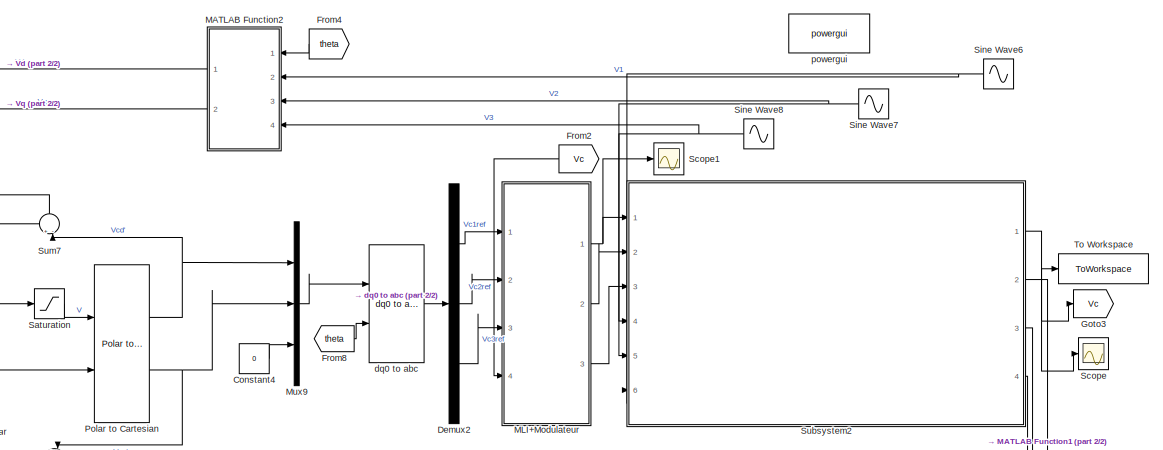
[diagram: root canvas - part 1/2, central region]
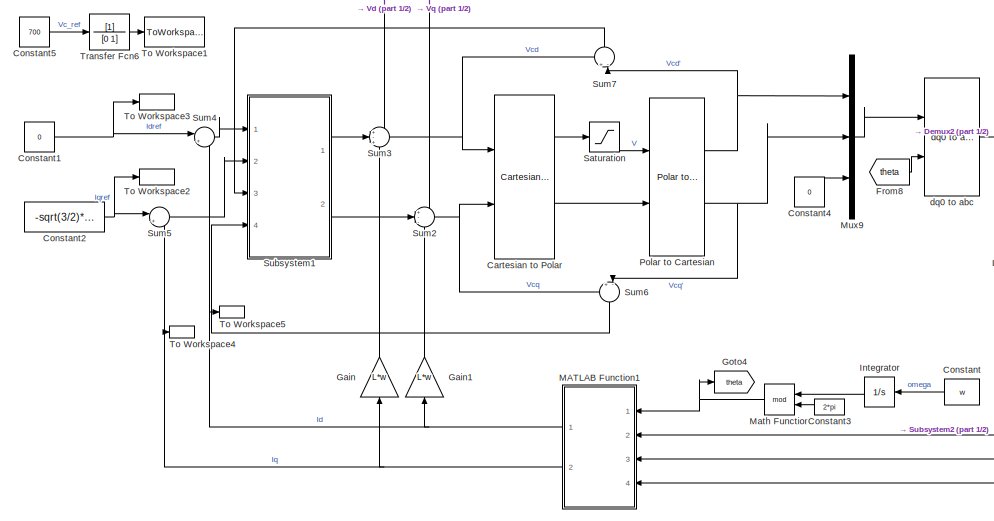
[diagram: root canvas - part 2/2, middle left region]
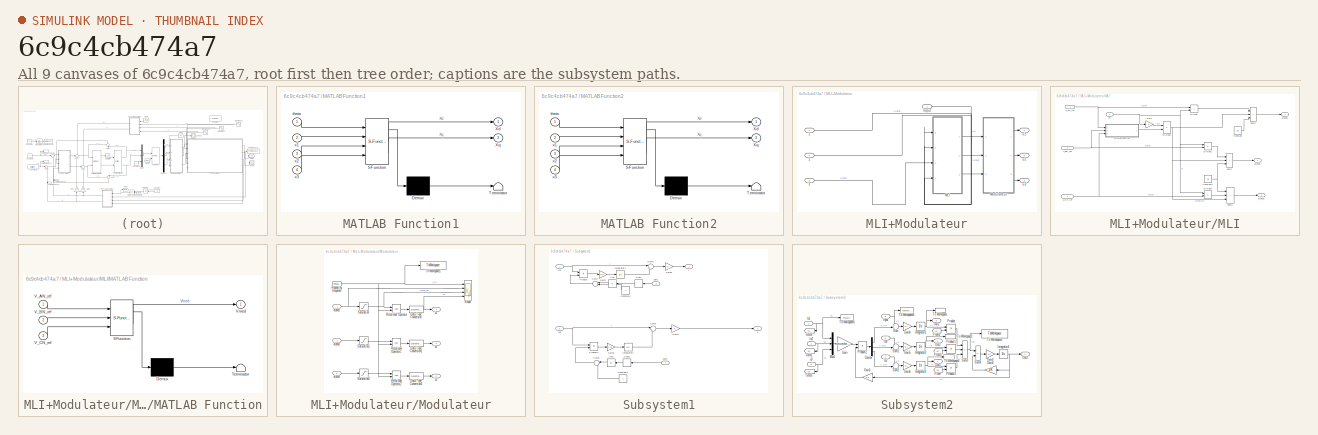
[diagram: thumbnail index - all 9 canvases of the model, root first then tree order]
MODEL slx_6c9c4cb474a7
KIND model
CONFIG AbsTol = auto
CONFIG EnableMultiTasking = off
CONFIG FixedStep = 1e-6
CONFIG MaxStep = auto
CONFIG MinStep = auto
CONFIG RelTol = 1e-3
CONFIG SampleTimeConstraint = Unconstrained
CONFIG Solver = ode8
CONFIG SolverName = ode8
CONFIG StartTime = 0.0
CONFIG StopTime = 0.1
BLOCK [Reference] Cartesian to Polar  REF=simulink_extras/Transformations/Cartesian to
Polar
  Ports = [2, 2]
  SourceBlock = simulink_extras/Transformations/Cartesian to\nPolar
  SourceType = Cart2Polar
BLOCK [Constant] Constant
  Value = w
BLOCK [Constant] Constant1
  Value = 0
BLOCK [Constant] Constant2
  Value = -sqrt(3/2)*Im
BLOCK [Constant] Constant3
  Value = 2*pi
BLOCK [Constant] Constant4
  Value = 0
BLOCK [Constant] Constant5
  Value = 700
BLOCK [Demux] Demux2
  Outputs = 3
  Ports = [1, 3]
BLOCK [From] From2
  GotoTag = Vc
BLOCK [From] From4
  GotoTag = theta
BLOCK [From] From8
  GotoTag = theta
BLOCK [Gain] Gain
  Gain = L*w
BLOCK [Gain] Gain1
  Gain = L*w
BLOCK [Goto] Goto3
  GotoTag = Vc
BLOCK [Goto] Goto4
  GotoTag = theta
BLOCK [Integrator] Integrator
  Ports = [1, 1]
BLOCK [SubSystem] MATLAB Function1
  ErrorFcn = Stateflow.Translate.translate
  PermitHierarchicalResolution = ExplicitOnly
  Ports = [4, 2]
  SFBlockType = MATLAB Function
  TreatAsAtomicUnit = on
BLOCK [Demux] MATLAB Function1/ Demux 
  Outputs = 1
  Ports = [1, 1]
BLOCK [S-Function] MATLAB Function1/ SFunction 
  EnableBusSupport = on
  FunctionName = sf_sfun
  PortCounts = [4 3]
  Ports = [4, 3]
  SFcnIsStateOwnerBlock = off
  SFunctionDeploymentMode = off
  Tag = Stateflow S-Function Redresseur_MLI_3Ph_dq_model 2
BLOCK [Terminator] MATLAB Function1/ Terminator 
BLOCK [Outport] MATLAB Function1/Xd
BLOCK [Outport] MATLAB Function1/Xq
  Port = 2
BLOCK [Inport] MATLAB Function1/theta
BLOCK [Inport] MATLAB Function1/x1
  Port = 2
BLOCK [Inport] MATLAB Function1/x2
  Port = 3
BLOCK [Inport] MATLAB Function1/x3
  Port = 4
BLOCK [SubSystem] MATLAB Function2
  ErrorFcn = Stateflow.Translate.translate
  PermitHierarchicalResolution = ExplicitOnly
  Ports = [4, 2]
  SFBlockType = MATLAB Function
  TreatAsAtomicUnit = on
BLOCK [Demux] MATLAB Function2/ Demux 
  Outputs = 1
  Ports = [1, 1]
BLOCK [S-Function] MATLAB Function2/ SFunction 
  EnableBusSupport = on
  FunctionName = sf_sfun
  PortCounts = [4 3]
  Ports = [4, 3]
  SFcnIsStateOwnerBlock = off
  SFunctionDeploymentMode = off
  Tag = Stateflow S-Function Redresseur_MLI_3Ph_dq_model 6
BLOCK [Terminator] MATLAB Function2/ Terminator 
BLOCK [Outport] MATLAB Function2/Xd
BLOCK [Outport] MATLAB Function2/Xq
  Port = 2
BLOCK [Inport] MATLAB Function2/theta
BLOCK [Inport] MATLAB Function2/x1
  Port = 2
BLOCK [Inport] MATLAB Function2/x2
  Port = 3
BLOCK [Inport] MATLAB Function2/x3
  Port = 4
BLOCK [SubSystem] MLI+Modulateur
  Ports = [4, 3]
BLOCK [Inport] MLI+Modulateur/1
  IconDisplay = Signal name
BLOCK [Inport] MLI+Modulateur/2
  IconDisplay = Signal name
  Port = 2
BLOCK [Inport] MLI+Modulateur/3
  IconDisplay = Signal name
  Port = 3
BLOCK [Inport] MLI+Modulateur/Input
  IconDisplay = Signal name
  Port = 4
BLOCK [SubSystem] MLI+Modulateur/MLI
  Ports = [4, 3]
BLOCK [Constant] MLI+Modulateur/MLI/Constant
  Value = 1/2
BLOCK [Constant] MLI+Modulateur/MLI/Constant1
  Value = 1/2
BLOCK [Product] MLI+Modulateur/MLI/Divide
  Inputs = */
  Ports = [2, 1]
BLOCK [Product] MLI+Modulateur/MLI/Divide1
  Inputs = /*
  Ports = [2, 1]
BLOCK [Product] MLI+Modulateur/MLI/Divide2
  Inputs = /*
  Ports = [2, 1]
BLOCK [Product] MLI+Modulateur/MLI/Divide3
  Inputs = /*
  Ports = [2, 1]
BLOCK [Gain] MLI+Modulateur/MLI/Gain
  Gain = 2
BLOCK [SubSystem] MLI+Modulateur/MLI/MATLAB Function
  ErrorFcn = Stateflow.Translate.translate
  PermitHierarchicalResolution = ExplicitOnly
  Ports = [3, 1]
  SFBlockType = MATLAB Function
  TreatAsAtomicUnit = on
BLOCK [Demux] MLI+Modulateur/MLI/MATLAB Function/ Demux 
  Outputs = 1
  Ports = [1, 1]
BLOCK [S-Function] MLI+Modulateur/MLI/MATLAB Function/ SFunction 
  EnableBusSupport = on
  FunctionName = sf_sfun
  PortCounts = [3 2]
  Ports = [3, 2]
  SFcnIsStateOwnerBlock = off
  SFunctionDeploymentMode = off
  Tag = Stateflow S-Function Redresseur_MLI_3Ph_dq_model 5
BLOCK [Terminator] MLI+Modulateur/MLI/MATLAB Function/ Terminator 
BLOCK [Inport] MLI+Modulateur/MLI/MATLAB Function/V_AN_ref
BLOCK [Inport] MLI+Modulateur/MLI/MATLAB Function/V_BN_ref
  Port = 2
BLOCK [Inport] MLI+Modulateur/MLI/MATLAB Function/V_CN_ref
  Port = 3
BLOCK [Outport] MLI+Modulateur/MLI/MATLAB Function/Vmed
BLOCK [Sum] MLI+Modulateur/MLI/Sum1
  IconShape = rectangular
  Inputs = +++
  Ports = [3, 1]
BLOCK [Sum] MLI+Modulateur/MLI/Sum2
  IconShape = rectangular
  Inputs = +++
  Ports = [3, 1]
BLOCK [Sum] MLI+Modulateur/MLI/Sum3
  IconShape = rectangular
  Inputs = +++
  Ports = [3, 1]
BLOCK [Inport] MLI+Modulateur/MLI/V_AN_ref
  IconDisplay = Signal name
BLOCK [Inport] MLI+Modulateur/MLI/V_BN_ref
  IconDisplay = Signal name
  Port = 2
BLOCK [Inport] MLI+Modulateur/MLI/V_CN_ref
  IconDisplay = Signal name
  Port = 3
BLOCK [Inport] MLI+Modulateur/MLI/Vc
  Port = 4
BLOCK [Outport] MLI+Modulateur/MLI/alpha1
BLOCK [Outport] MLI+Modulateur/MLI/alpha2
  Port = 2
BLOCK [Outport] MLI+Modulateur/MLI/alpha3
  Port = 3
BLOCK [SubSystem] MLI+Modulateur/Modulateur
  Ports = [3, 3]
BLOCK [DataTypeConversion] MLI+Modulateur/Modulateur/Data Type Conversion
  RndMeth = Floor
  SaturateOnIntegerOverflow = off
BLOCK [DataTypeConversion] MLI+Modulateur/Modulateur/Data Type Conversion1
  RndMeth = Floor
  SaturateOnIntegerOverflow = off
BLOCK [DataTypeConversion] MLI+Modulateur/Modulateur/Data Type Conversion2
  RndMeth = Floor
  SaturateOnIntegerOverflow = off
BLOCK [RelationalOperator] MLI+Modulateur/Modulateur/Relational Operator
  InputSameDT = off
  OutDataTypeStr = boolean
  Ports = [2, 1]
  RndMeth = Simplest
BLOCK [RelationalOperator] MLI+Modulateur/Modulateur/Relational Operator1
  InputSameDT = off
  OutDataTypeStr = boolean
  Ports = [2, 1]
  RndMeth = Simplest
BLOCK [RelationalOperator] MLI+Modulateur/Modulateur/Relational Operator2
  InputSameDT = off
  OutDataTypeStr = boolean
  Ports = [2, 1]
  RndMeth = Simplest
BLOCK [Reference] MLI+Modulateur/Modulateur/Repeating Sequence  REF=simulink/Sources/Repeating
Sequence
  Ports = [0, 1]
  SourceBlock = simulink/Sources/Repeating\nSequence
  SourceType = Repeating table
BLOCK [Saturate] MLI+Modulateur/Modulateur/Saturation
  LowerLimit = 0
  UpperLimit = 1
BLOCK [Saturate] MLI+Modulateur/Modulateur/Saturation1
  LowerLimit = 0
  UpperLimit = 1
BLOCK [Saturate] MLI+Modulateur/Modulateur/Saturation2
  LowerLimit = 0
  UpperLimit = 1
BLOCK [Scope] MLI+Modulateur/Modulateur/Scope
  Floating = off
  NumInputPorts = 4
  Ports = [4]
  ScopeSpecificationString = Simulink.scopes.TimeScopeBlockCfg('CurrentConfiguration', extmgr.ConfigurationSet(extmgr.Configuration('Core','General UI',true),extmgr.Configuration('Core','Source UI',true),extmgr.Configuration('Sources','WiredSimulink',true,'DataLoggingVariableName','ScopeData2'),extmgr.Configuration('Visuals','Time Domain',true,'SerializedDisplays',{struct('MinYLimReal','-0.07963','MaxYLimReal','1.04155','YLab...<+1554ch>
BLOCK [ToWorkspace] MLI+Modulateur/Modulateur/To Workspace1
  FixptAsFi = on
  MaxDataPoints = inf
  Ports = [1]
  SampleTime = -1
  SaveFormat = Timeseries
  VariableName = Vtri
BLOCK [Inport] MLI+Modulateur/Modulateur/alpha1
BLOCK [Inport] MLI+Modulateur/Modulateur/alpha2
  Port = 2
BLOCK [Inport] MLI+Modulateur/Modulateur/alpha3
  Port = 3
BLOCK [Outport] MLI+Modulateur/Modulateur/u1
BLOCK [Outport] MLI+Modulateur/Modulateur/u2
  Port = 2
BLOCK [Outport] MLI+Modulateur/Modulateur/u3
  Port = 3
BLOCK [Outport] MLI+Modulateur/u1
BLOCK [Outport] MLI+Modulateur/u2
  Port = 2
BLOCK [Outport] MLI+Modulateur/u3
  Port = 3
BLOCK [Math] Math Function
  Operator = mod
  Ports = [2, 1]
BLOCK [Mux] Mux9
  DisplayOption = bar
  Inputs = 3
  Ports = [3, 1]
BLOCK [Reference] Polar to Cartesian  REF=simulink_extras/Transformations/Polar to
Cartesian
  Ports = [2, 2]
  SourceBlock = simulink_extras/Transformations/Polar to\nCartesian
  SourceType = Polar2Cart
BLOCK [Saturate] Saturation
  LowerLimit = 0
  UpperLimit = 381
BLOCK [Scope] Scope
  Floating = off
  NumInputPorts = 1
  Ports = [1]
  ScopeSpecificationString = Simulink.scopes.TimeScopeBlockCfg('CurrentConfiguration', extmgr.ConfigurationSet(extmgr.Configuration('Core','General UI',true),extmgr.Configuration('Core','Source UI',true),extmgr.Configuration('Sources','WiredSimulink',true,'DataLoggingVariableName','ScopeData1'),extmgr.Configuration('Visuals','Time Domain',true,'SerializedDisplays',{struct('MinYLimReal','474.62231','MaxYLimReal','809.09298','Y...<+1458ch>
BLOCK [Scope] Scope1
  Floating = off
  NumInputPorts = 1
  Ports = [1]
  ScopeSpecificationString = Simulink.scopes.TimeScopeBlockCfg('CurrentConfiguration', extmgr.ConfigurationSet(extmgr.Configuration('Core','General UI',true),extmgr.Configuration('Core','Source UI',true),extmgr.Configuration('Sources','WiredSimulink',true,'DataLoggingVariableName','u1_0','DataLogging',true,'DataLoggingDecimation','1'),extmgr.Configuration('Visuals','Time Domain',true,'SerializedDisplays',{struct('MinYLimReal'...<+1502ch>
BLOCK [Sin] Sine Wave6
  Amplitude = V*sqrt(2)
  Frequency = 2*50*pi
  Ports = [0, 1]
  SampleTime = 0
BLOCK [Sin] Sine Wave7
  Amplitude = V*sqrt(2)
  Frequency = 2*50*pi
  Phase = -2*pi/3
  Ports = [0, 1]
  SampleTime = 0
BLOCK [Sin] Sine Wave8
  Amplitude = V*sqrt(2)
  Frequency = 2*50*pi
  Phase = -4*pi/3
  Ports = [0, 1]
  SampleTime = 0
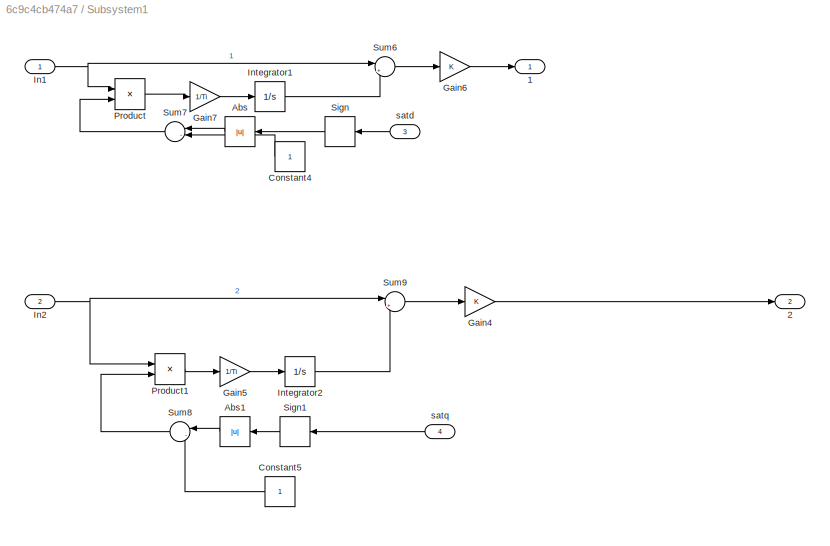
BLOCK [SubSystem] Subsystem1
  Ports = [4, 2]
BLOCK [Outport] Subsystem1/1
BLOCK [Outport] Subsystem1/2
  Port = 2
BLOCK [Abs] Subsystem1/Abs
  SaturateOnIntegerOverflow = off
BLOCK [Abs] Subsystem1/Abs1
  SaturateOnIntegerOverflow = off
BLOCK [Constant] Subsystem1/Constant4
BLOCK [Constant] Subsystem1/Constant5
BLOCK [Gain] Subsystem1/Gain4
  Gain = K
BLOCK [Gain] Subsystem1/Gain5
  Gain = 1/Ti
BLOCK [Gain] Subsystem1/Gain6
  Gain = K
BLOCK [Gain] Subsystem1/Gain7
  Gain = 1/Ti
BLOCK [Inport] Subsystem1/In1
  IconDisplay = Signal name
BLOCK [Inport] Subsystem1/In2
  IconDisplay = Signal name
  Port = 2
BLOCK [Integrator] Subsystem1/Integrator1
  InitialCondition = 1
  Ports = [1, 1]
BLOCK [Integrator] Subsystem1/Integrator2
  InitialCondition = 1
  Ports = [1, 1]
BLOCK [Product] Subsystem1/Product
  Ports = [2, 1]
BLOCK [Product] Subsystem1/Product1
  Ports = [2, 1]
BLOCK [Signum] Subsystem1/Sign
BLOCK [Signum] Subsystem1/Sign1
BLOCK [Sum] Subsystem1/Sum6
  Inputs = |++
  Ports = [2, 1]
BLOCK [Sum] Subsystem1/Sum7
  Inputs = |-+
  Ports = [2, 1]
BLOCK [Sum] Subsystem1/Sum8
  Inputs = |-+
  Ports = [2, 1]
BLOCK [Sum] Subsystem1/Sum9
  Inputs = |++
  Ports = [2, 1]
BLOCK [Inport] Subsystem1/satd
  Port = 3
BLOCK [Inport] Subsystem1/satq
  Port = 4
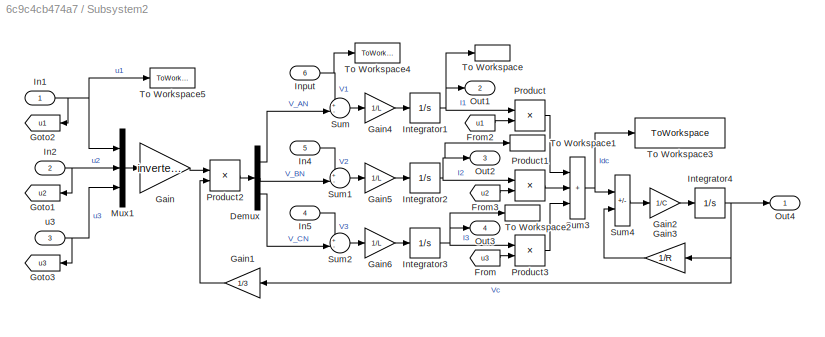
BLOCK [SubSystem] Subsystem2
  Ports = [6, 4]
BLOCK [Demux] Subsystem2/Demux
  Outputs = 3
  Ports = [1, 3]
BLOCK [From] Subsystem2/From
  GotoTag = u3
BLOCK [From] Subsystem2/From2
  GotoTag = u1
BLOCK [From] Subsystem2/From3
  GotoTag = u2
BLOCK [Gain] Subsystem2/Gain
  Gain = inverter_matrix
  Multiplication = Matrix(K*u)
BLOCK [Gain] Subsystem2/Gain1
  Gain = 1/3
BLOCK [Gain] Subsystem2/Gain2
  Gain = 1/C
BLOCK [Gain] Subsystem2/Gain3
  Gain = 1/R
BLOCK [Gain] Subsystem2/Gain4
  Gain = 1/L
BLOCK [Gain] Subsystem2/Gain5
  Gain = 1/L
BLOCK [Gain] Subsystem2/Gain6
  Gain = 1/L
BLOCK [Goto] Subsystem2/Goto1
  GotoTag = u2
BLOCK [Goto] Subsystem2/Goto2
  GotoTag = u1
BLOCK [Goto] Subsystem2/Goto3
  GotoTag = u3
BLOCK [Inport] Subsystem2/In1
  IconDisplay = Signal name
BLOCK [Inport] Subsystem2/In2
  IconDisplay = Signal name
  Port = 2
BLOCK [Inport] Subsystem2/In4
  IconDisplay = Signal name
  Port = 5
BLOCK [Inport] Subsystem2/In5
  IconDisplay = Signal name
  Port = 4
BLOCK [Inport] Subsystem2/Input
  IconDisplay = Signal name
  Port = 6
BLOCK [Integrator] Subsystem2/Integrator1
  Ports = [1, 1]
BLOCK [Integrator] Subsystem2/Integrator2
  Ports = [1, 1]
BLOCK [Integrator] Subsystem2/Integrator3
  Ports = [1, 1]
BLOCK [Integrator] Subsystem2/Integrator4
  InitialCondition = V*sqrt(2)*sqrt(3)
  Ports = [1, 1]
BLOCK [Mux] Subsystem2/Mux1
  DisplayOption = bar
  Inputs = 3
  Ports = [3, 1]
BLOCK [Outport] Subsystem2/Out1
  IconDisplay = Signal name
  Port = 2
BLOCK [Outport] Subsystem2/Out2
  IconDisplay = Signal name
  Port = 3
BLOCK [Outport] Subsystem2/Out3
  IconDisplay = Signal name
  Port = 4
BLOCK [Outport] Subsystem2/Out4
  IconDisplay = Signal name
BLOCK [Product] Subsystem2/Product
  Ports = [2, 1]
BLOCK [Product] Subsystem2/Product1
  Ports = [2, 1]
BLOCK [Product] Subsystem2/Product2
  Ports = [2, 1]
BLOCK [Product] Subsystem2/Product3
  Ports = [2, 1]
BLOCK [Sum] Subsystem2/Sum
  Inputs = +-|
  Ports = [2, 1]
BLOCK [Sum] Subsystem2/Sum1
  Inputs = +-|
  Ports = [2, 1]
BLOCK [Sum] Subsystem2/Sum2
  Inputs = +-|
  Ports = [2, 1]
BLOCK [Sum] Subsystem2/Sum3
  IconShape = rectangular
  Inputs = +++
  Ports = [3, 1]
BLOCK [Sum] Subsystem2/Sum4
  IconShape = rectangular
  Inputs = +-
  Ports = [2, 1]
BLOCK [ToWorkspace] Subsystem2/To Workspace
  FixptAsFi = on
  MaxDataPoints = inf
  Ports = [1]
  SampleTime = -1
  SaveFormat = Timeseries
  VariableName = I1
BLOCK [ToWorkspace] Subsystem2/To Workspace1
  FixptAsFi = on
  MaxDataPoints = inf
  Ports = [1]
  SampleTime = -1
  SaveFormat = Timeseries
  VariableName = I2
BLOCK [ToWorkspace] Subsystem2/To Workspace2
  FixptAsFi = on
  MaxDataPoints = inf
  Ports = [1]
  SampleTime = -1
  SaveFormat = Timeseries
  VariableName = I3
BLOCK [ToWorkspace] Subsystem2/To Workspace3
  FixptAsFi = on
  MaxDataPoints = inf
  Ports = [1]
  SampleTime = -1
  SaveFormat = Timeseries
  VariableName = Idc
BLOCK [ToWorkspace] Subsystem2/To Workspace4
  FixptAsFi = on
  MaxDataPoints = inf
  Ports = [1]
  SampleTime = -1
  SaveFormat = Timeseries
  VariableName = V1
BLOCK [ToWorkspace] Subsystem2/To Workspace5
  FixptAsFi = on
  MaxDataPoints = inf
  Ports = [1]
  SampleTime = -1
  SaveFormat = Timeseries
  VariableName = u1
BLOCK [Inport] Subsystem2/u3
  IconDisplay = Signal name
  Port = 3
BLOCK [Sum] Sum2
  Inputs = +--
  Ports = [3, 1]
BLOCK [Sum] Sum3
  Inputs = +-+
  Ports = [3, 1]
BLOCK [Sum] Sum4
  Inputs = |+-
  Ports = [2, 1]
BLOCK [Sum] Sum5
  Inputs = |+-
  Ports = [2, 1]
BLOCK [Sum] Sum6
  Inputs = +-
  Ports = [2, 1]
BLOCK [Sum] Sum7
  Inputs = +-
  Ports = [2, 1]
BLOCK [ToWorkspace] To Workspace
  FixptAsFi = on
  MaxDataPoints = inf
  Ports = [1]
  SampleTime = -1
  SaveFormat = Timeseries
  VariableName = Vc
BLOCK [ToWorkspace] To Workspace1
  FixptAsFi = on
  MaxDataPoints = inf
  Ports = [1]
  SampleTime = -1
  SaveFormat = Timeseries
  VariableName = Vc_ref
BLOCK [ToWorkspace] To Workspace2
  FixptAsFi = on
  MaxDataPoints = inf
  Ports = [1]
  SampleTime = -1
  SaveFormat = Timeseries
  VariableName = Iqref
BLOCK [ToWorkspace] To Workspace3
  FixptAsFi = on
  MaxDataPoints = inf
  Ports = [1]
  SampleTime = -1
  SaveFormat = Timeseries
  VariableName = Idref
BLOCK [ToWorkspace] To Workspace4
  FixptAsFi = on
  MaxDataPoints = inf
  Ports = [1]
  SampleTime = -1
  SaveFormat = Timeseries
  VariableName = Iq
BLOCK [ToWorkspace] To Workspace5
  FixptAsFi = on
  MaxDataPoints = inf
  Ports = [1]
  SampleTime = -1
  SaveFormat = Timeseries
  VariableName = Id
BLOCK [TransferFcn] Transfer Fcn6
  Denominator = [0 1]
BLOCK [Reference] dq0 to abc  REF=powerlib_meascontrol/Transformations/dq0 to abc
  Ports = [2, 1]
  SourceBlock = powerlib_meascontrol/Transformations/dq0 to abc
  SourceType = dq0 to abc Transformation
BLOCK [Reference] powergui  REF=powerlib/powergui
  Ports = []
  Priority = 1
  SourceBlock = powerlib/powergui
  SourceType = PSB option menu block
LINE Cartesian to Polar:1 -> Saturation:1
LINE Cartesian to Polar:2 -> Polar to Cartesian:2
NET Constant1:1 -> Sum4:1, To Workspace3:1
NET Constant2:1 -> Sum5:1, To Workspace2:1
LINE Constant3:1 -> Math Function:2
LINE Constant4:1 -> Mux9:3
LINE Constant5:1 -> Transfer Fcn6:1
LINE Constant:1 -> Integrator:1
LINE Demux2:1 -> MLI+Modulateur:1
LINE Demux2:2 -> MLI+Modulateur:2
LINE Demux2:3 -> MLI+Modulateur:3
LINE From2:1 -> MLI+Modulateur:4
LINE From4:1 -> MATLAB Function2:1
LINE From8:1 -> dq0 to abc:2
LINE Gain1:1 -> Sum2:3
LINE Gain:1 -> Sum3:3
LINE Integrator:1 -> Math Function:1
NET MATLAB Function1:1 -> Gain1:1, Sum4:2, To Workspace5:1
NET MATLAB Function1:2 -> Gain:1, Sum5:2, To Workspace4:1
LINE MATLAB Function2:1 -> Sum3:1
LINE MATLAB Function2:2 -> Sum2:1
LINE MLI+Modulateur/1:1 -> MLI+Modulateur/MLI:1
LINE MLI+Modulateur/2:1 -> MLI+Modulateur/MLI:2
LINE MLI+Modulateur/3:1 -> MLI+Modulateur/MLI:3
LINE MLI+Modulateur/Input:1 -> MLI+Modulateur/MLI:4
NET MLI+Modulateur/MLI/Constant1:1 -> MLI+Modulateur/MLI/Sum1:3, MLI+Modulateur/MLI/Sum2:1
LINE MLI+Modulateur/MLI/Constant:1 -> MLI+Modulateur/MLI/Sum3:3
LINE MLI+Modulateur/MLI/Divide1:1 -> MLI+Modulateur/MLI/Sum1:1
LINE MLI+Modulateur/MLI/Divide2:1 -> MLI+Modulateur/MLI/Sum2:2
NET MLI+Modulateur/MLI/Divide3:1 -> MLI+Modulateur/MLI/Sum1:2, MLI+Modulateur/MLI/Sum2:3, MLI+Modulateur/MLI/Sum3:2
LINE MLI+Modulateur/MLI/Divide:1 -> MLI+Modulateur/MLI/Sum3:1
LINE MLI+Modulateur/MLI/Gain:1 -> MLI+Modulateur/MLI/Divide3:1
LINE MLI+Modulateur/MLI/MATLAB Function:1 -> MLI+Modulateur/MLI/Divide3:2
LINE MLI+Modulateur/MLI/Sum1:1 -> MLI+Modulateur/MLI/alpha2:1
LINE MLI+Modulateur/MLI/Sum2:1 -> MLI+Modulateur/MLI/alpha3:1
LINE MLI+Modulateur/MLI/Sum3:1 -> MLI+Modulateur/MLI/alpha1:1
NET MLI+Modulateur/MLI/V_AN_ref:1 -> MLI+Modulateur/MLI/Divide:1, MLI+Modulateur/MLI/MATLAB Function:1
NET MLI+Modulateur/MLI/V_BN_ref:1 -> MLI+Modulateur/MLI/Divide1:2, MLI+Modulateur/MLI/MATLAB Function:2
NET MLI+Modulateur/MLI/V_CN_ref:1 -> MLI+Modulateur/MLI/Divide2:2, MLI+Modulateur/MLI/MATLAB Function:3
NET MLI+Modulateur/MLI/Vc:1 -> MLI+Modulateur/MLI/Divide1:1, MLI+Modulateur/MLI/Divide2:1, MLI+Modulateur/MLI/Divide:2, MLI+Modulateur/MLI/Gain:1
LINE MLI+Modulateur/MLI:1 -> MLI+Modulateur/Modulateur:1
LINE MLI+Modulateur/MLI:2 -> MLI+Modulateur/Modulateur:2
LINE MLI+Modulateur/MLI:3 -> MLI+Modulateur/Modulateur:3
LINE MLI+Modulateur/Modulateur/Data Type Conversion1:1 -> MLI+Modulateur/Modulateur/u2:1
LINE MLI+Modulateur/Modulateur/Data Type Conversion2:1 -> MLI+Modulateur/Modulateur/u3:1
NET MLI+Modulateur/Modulateur/Data Type Conversion:1 -> MLI+Modulateur/Modulateur/Scope:4, MLI+Modulateur/Modulateur/u1:1
LINE MLI+Modulateur/Modulateur/Relational Operator1:1 -> MLI+Modulateur/Modulateur/Data Type Conversion1:1
LINE MLI+Modulateur/Modulateur/Relational Operator2:1 -> MLI+Modulateur/Modulateur/Data Type Conversion2:1
LINE MLI+Modulateur/Modulateur/Relational Operator:1 -> MLI+Modulateur/Modulateur/Data Type Conversion:1
NET MLI+Modulateur/Modulateur/Repeating Sequence:1 -> MLI+Modulateur/Modulateur/Relational Operator1:2, MLI+Modulateur/Modulateur/Relational Operator2:2, MLI+Modulateur/Modulateur/Relational Operator:2, MLI+Modulateur/Modulateur/Scope:1, MLI+Modulateur/Modulateur/To Workspace1:1
LINE MLI+Modulateur/Modulateur/Saturation1:1 -> MLI+Modulateur/Modulateur/Relational Operator1:1
LINE MLI+Modulateur/Modulateur/Saturation2:1 -> MLI+Modulateur/Modulateur/Relational Operator2:1
NET MLI+Modulateur/Modulateur/Saturation:1 -> MLI+Modulateur/Modulateur/Relational Operator:1, MLI+Modulateur/Modulateur/Scope:3
NET MLI+Modulateur/Modulateur/alpha1:1 -> MLI+Modulateur/Modulateur/Saturation:1, MLI+Modulateur/Modulateur/Scope:2
LINE MLI+Modulateur/Modulateur/alpha2:1 -> MLI+Modulateur/Modulateur/Saturation1:1
LINE MLI+Modulateur/Modulateur/alpha3:1 -> MLI+Modulateur/Modulateur/Saturation2:1
LINE MLI+Modulateur/Modulateur:1 -> MLI+Modulateur/u1:1
LINE MLI+Modulateur/Modulateur:2 -> MLI+Modulateur/u2:1
LINE MLI+Modulateur/Modulateur:3 -> MLI+Modulateur/u3:1
NET MLI+Modulateur:1 -> Scope1:1, Subsystem2:1
LINE MLI+Modulateur:2 -> Subsystem2:2
LINE MLI+Modulateur:3 -> Subsystem2:3
NET Math Function:1 -> Goto4:1, MATLAB Function1:1
LINE Mux9:1 -> dq0 to abc:1
NET Polar to Cartesian:1 -> Mux9:1, Sum7:2
NET Polar to Cartesian:2 -> Mux9:2, Sum6:2
LINE Saturation:1 -> Polar to Cartesian:1
NET Sine Wave6:1 -> MATLAB Function2:2, Subsystem2:6
NET Sine Wave7:1 -> MATLAB Function2:3, Subsystem2:5
NET Sine Wave8:1 -> MATLAB Function2:4, Subsystem2:4
LINE Subsystem1/Abs1:1 -> Subsystem1/Sum8:1
LINE Subsystem1/Abs:1 -> Subsystem1/Sum7:1
LINE Subsystem1/Constant4:1 -> Subsystem1/Sum7:2
LINE Subsystem1/Constant5:1 -> Subsystem1/Sum8:2
LINE Subsystem1/Gain4:1 -> Subsystem1/2:1
LINE Subsystem1/Gain5:1 -> Subsystem1/Integrator2:1
LINE Subsystem1/Gain6:1 -> Subsystem1/1:1
LINE Subsystem1/Gain7:1 -> Subsystem1/Integrator1:1
NET Subsystem1/In1:1 -> Subsystem1/Product:1, Subsystem1/Sum6:1
NET Subsystem1/In2:1 -> Subsystem1/Product1:1, Subsystem1/Sum9:1
LINE Subsystem1/Integrator1:1 -> Subsystem1/Sum6:2
LINE Subsystem1/Integrator2:1 -> Subsystem1/Sum9:2
LINE Subsystem1/Product1:1 -> Subsystem1/Gain5:1
LINE Subsystem1/Product:1 -> Subsystem1/Gain7:1
LINE Subsystem1/Sign1:1 -> Subsystem1/Abs1:1
LINE Subsystem1/Sign:1 -> Subsystem1/Abs:1
LINE Subsystem1/Sum6:1 -> Subsystem1/Gain6:1
LINE Subsystem1/Sum7:1 -> Subsystem1/Product:2
LINE Subsystem1/Sum8:1 -> Subsystem1/Product1:2
LINE Subsystem1/Sum9:1 -> Subsystem1/Gain4:1
LINE Subsystem1/satd:1 -> Subsystem1/Sign:1
LINE Subsystem1/satq:1 -> Subsystem1/Sign1:1
LINE Subsystem1:1 -> Sum3:2
LINE Subsystem1:2 -> Sum2:2
LINE Subsystem2/Demux:1 -> Subsystem2/Sum:2
LINE Subsystem2/Demux:2 -> Subsystem2/Sum1:2
LINE Subsystem2/Demux:3 -> Subsystem2/Sum2:2
LINE Subsystem2/From2:1 -> Subsystem2/Product:2
LINE Subsystem2/From3:1 -> Subsystem2/Product1:2
LINE Subsystem2/From:1 -> Subsystem2/Product3:2
LINE Subsystem2/Gain1:1 -> Subsystem2/Product2:2
LINE Subsystem2/Gain2:1 -> Subsystem2/Integrator4:1
LINE Subsystem2/Gain3:1 -> Subsystem2/Sum4:2
LINE Subsystem2/Gain4:1 -> Subsystem2/Integrator1:1
LINE Subsystem2/Gain5:1 -> Subsystem2/Integrator2:1
LINE Subsystem2/Gain6:1 -> Subsystem2/Integrator3:1
LINE Subsystem2/Gain:1 -> Subsystem2/Product2:1
NET Subsystem2/In1:1 -> Subsystem2/Goto2:1, Subsystem2/Mux1:1, Subsystem2/To Workspace5:1
NET Subsystem2/In2:1 -> Subsystem2/Goto1:1, Subsystem2/Mux1:2
LINE Subsystem2/In4:1 -> Subsystem2/Sum1:1
LINE Subsystem2/In5:1 -> Subsystem2/Sum2:1
NET Subsystem2/Input:1 -> Subsystem2/Sum:1, Subsystem2/To Workspace4:1
NET Subsystem2/Integrator1:1 -> Subsystem2/Out1:1, Subsystem2/Product:1, Subsystem2/To Workspace:1
NET Subsystem2/Integrator2:1 -> Subsystem2/Out2:1, Subsystem2/Product1:1, Subsystem2/To Workspace1:1
NET Subsystem2/Integrator3:1 -> Subsystem2/Out3:1, Subsystem2/Product3:1, Subsystem2/To Workspace2:1
NET Subsystem2/Integrator4:1 -> Subsystem2/Gain1:1, Subsystem2/Gain3:1, Subsystem2/Out4:1
LINE Subsystem2/Mux1:1 -> Subsystem2/Gain:1
LINE Subsystem2/Product1:1 -> Subsystem2/Sum3:2
LINE Subsystem2/Product2:1 -> Subsystem2/Demux:1
LINE Subsystem2/Product3:1 -> Subsystem2/Sum3:3
LINE Subsystem2/Product:1 -> Subsystem2/Sum3:1
LINE Subsystem2/Sum1:1 -> Subsystem2/Gain5:1
LINE Subsystem2/Sum2:1 -> Subsystem2/Gain6:1
NET Subsystem2/Sum3:1 -> Subsystem2/Sum4:1, Subsystem2/To Workspace3:1
LINE Subsystem2/Sum4:1 -> Subsystem2/Gain2:1
LINE Subsystem2/Sum:1 -> Subsystem2/Gain4:1
NET Subsystem2/u3:1 -> Subsystem2/Goto3:1, Subsystem2/Mux1:3
NET Subsystem2:1 -> Goto3:1, Scope:1, To Workspace:1
LINE Subsystem2:2 -> MATLAB Function1:2
LINE Subsystem2:3 -> MATLAB Function1:3
LINE Subsystem2:4 -> MATLAB Function1:4
NET Sum2:1 -> Cartesian to Polar:2, Sum6:1
NET Sum3:1 -> Cartesian to Polar:1, Sum7:1
LINE Sum4:1 -> Subsystem1:1
LINE Sum5:1 -> Subsystem1:2
LINE Sum6:1 -> Subsystem1:4
LINE Sum7:1 -> Subsystem1:3
LINE Transfer Fcn6:1 -> To Workspace1:1
LINE dq0 to abc:1 -> Demux2:1
note: NET lines group one-source signal fan-out (src -> all destinations, sorted); 1:1 wires keep LINE
CHART MATLAB Function1 states=1 transitions=1
  STATE_LABEL 'eML_blk_kernel()'
  STATE_LABEL 'SCRIPT:\nfunction [Xd,Xq] = fcn(theta,x1,x2,x3)\n\nXd = sqrt(2/3)*(x1*cos(theta) + x2*cos(theta-2*pi/3) + x3*cos(theta+2*pi/3));\nXq = sqrt(2/3)*(-x1*sin(theta) - x2*sin(theta-2*pi/3) - x3*sin(theta+2*pi/3));\n'
CHART MLI+Modulateur/MLI/MATLAB Function states=1 transitions=1
  STATE_LABEL 'eML_blk_kernel()'
  STATE_LABEL 'SCRIPT:\nfunction Vmed = fcn(V_AN_ref,V_BN_ref,V_CN_ref)\n     V_set = [V_AN_ref V_BN_ref V_CN_ref];\nVmed= -(min(V_set) + max(V_set));\n'
CHART MATLAB Function2 states=1 transitions=1
  STATE_LABEL 'eML_blk_kernel()'
  STATE_LABEL 'SCRIPT:\nfunction [Xd,Xq] = fcn(theta,x1,x2,x3)\n\nXd = sqrt(2/3)*(x1*cos(theta) + x2*cos(theta-2*pi/3) + x3*cos(theta+2*pi/3));\nXq = sqrt(2/3)*(-x1*sin(theta) - x2*sin(theta-2*pi/3) - x3*sin(theta+2*pi/3));\n'
